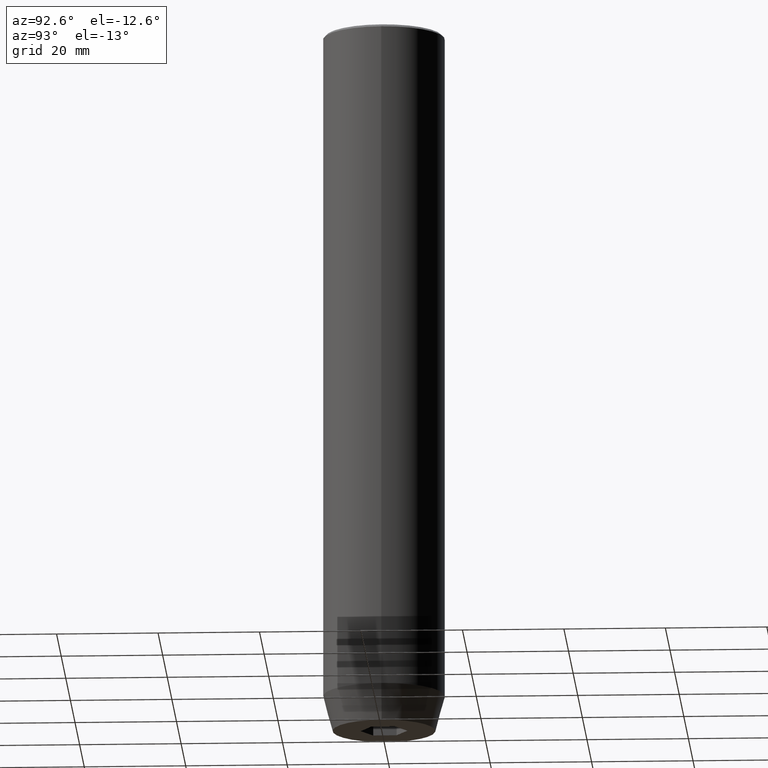
[diagram: clean part render]
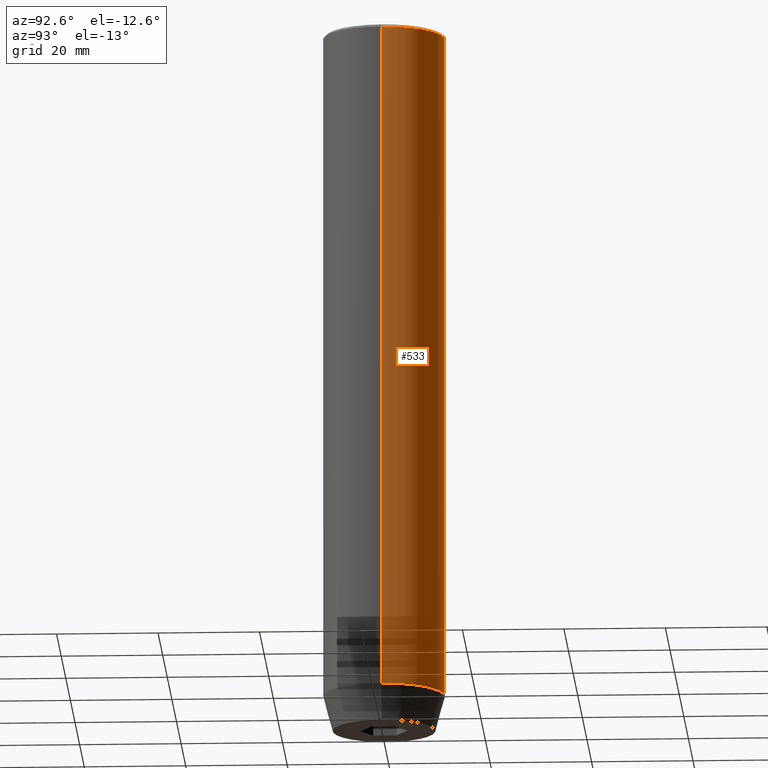
[diagram: same view with one face highlighted and labeled with its STEP entity id]
A machine part, auxiliary view. The second image highlights one B-rep face of the part: STEP entity #533.
In plain terms, the highlighted cylindrical surface (partial cylindrical patch) has radius 12 mm, axis along (-0, -0, 1).
Its self-contained STEP definition (entity closure, byte-faithful):
#8 = VECTOR ( 'NONE', #570, 1000.000000000000000 ) ;
#18 = CARTESIAN_POINT ( 'NONE',  ( 12.00000000000000000, 0.000000000000000000, -0.5000000000000056621 ) ) ;
#32 = ORIENTED_EDGE ( 'NONE', *, *, #495, .T. ) ;
#55 = VECTOR ( 'NONE', #195, 1000.000000000000000 ) ;
#61 = EDGE_CURVE ( 'NONE', #494, #375, #242, .T. ) ;
#70 = VERTEX_POINT ( 'NONE', #18 ) ;
#80 = VERTEX_POINT ( 'NONE', #200 ) ;
#85 = EDGE_CURVE ( 'NONE', #80, #70, #548, .T. ) ;
#98 = CYLINDRICAL_SURFACE ( 'NONE', #393, 12.00000000000000000 ) ;
#111 = DIRECTION ( 'NONE',  ( 0.000000000000000000, 0.000000000000000000, -1.000000000000000000 ) ) ;
#125 = ORIENTED_EDGE ( 'NONE', *, *, #61, .T. ) ;
#149 = CARTESIAN_POINT ( 'NONE',  ( -12.00000000000000000, 1.469576158976823947E-15, 0.000000000000000000 ) ) ;
#156 = ORIENTED_EDGE ( 'NONE', *, *, #304, .F. ) ;
#163 = CARTESIAN_POINT ( 'NONE',  ( 0.000000000000000000, 0.000000000000000000, -0.5000000000000056621 ) ) ;
#168 = DIRECTION ( 'NONE',  ( 1.000000000000000000, 0.000000000000000000, 0.000000000000000000 ) ) ;
#178 = ORIENTED_EDGE ( 'NONE', *, *, #85, .T. ) ;
#195 = DIRECTION ( 'NONE',  ( -0.000000000000000000, -0.000000000000000000, 1.000000000000000000 ) ) ;
#200 = CARTESIAN_POINT ( 'NONE',  ( -12.00000000000000000, 1.469576158976823947E-15, -0.5000000000000056621 ) ) ;
#208 = CARTESIAN_POINT ( 'NONE',  ( 0.000000000000000000, 0.000000000000000000, 0.000000000000000000 ) ) ;
#237 = DIRECTION ( 'NONE',  ( -0.000000000000000000, -0.000000000000000000, 1.000000000000000000 ) ) ;
#240 = FACE_OUTER_BOUND ( 'NONE', #534, .T. ) ;
#242 = CIRCLE ( 'NONE', #276, 12.00000000000000000 ) ;
#276 = AXIS2_PLACEMENT_3D ( 'NONE', #479, #237, #379 ) ;
#296 = AXIS2_PLACEMENT_3D ( 'NONE', #163, #111, #168 ) ;
#304 = EDGE_CURVE ( 'NONE', #494, #70, #416, .T. ) ;
#335 = CARTESIAN_POINT ( 'NONE',  ( -12.00000000000000000, 1.469576158976823947E-15, -133.0000000000000000 ) ) ;
#336 = CARTESIAN_POINT ( 'NONE',  ( 12.00000000000000000, 0.000000000000000000, -133.0000000000000000 ) ) ;
#375 = VERTEX_POINT ( 'NONE', #335 ) ;
#379 = DIRECTION ( 'NONE',  ( 1.000000000000000000, 0.000000000000000000, 0.000000000000000000 ) ) ;
#393 = AXIS2_PLACEMENT_3D ( 'NONE', #208, #478, #423 ) ;
#416 = LINE ( 'NONE', #421, #55 ) ;
#421 = CARTESIAN_POINT ( 'NONE',  ( 12.00000000000000000, 0.000000000000000000, 0.000000000000000000 ) ) ;
#423 = DIRECTION ( 'NONE',  ( 1.000000000000000000, 0.000000000000000000, 0.000000000000000000 ) ) ;
#478 = DIRECTION ( 'NONE',  ( -0.000000000000000000, -0.000000000000000000, 1.000000000000000000 ) ) ;
#479 = CARTESIAN_POINT ( 'NONE',  ( 0.000000000000000000, 0.000000000000000000, -133.0000000000000000 ) ) ;
#494 = VERTEX_POINT ( 'NONE', #336 ) ;
#495 = EDGE_CURVE ( 'NONE', #375, #80, #516, .T. ) ;
#516 = LINE ( 'NONE', #149, #8 ) ;
#533 = ADVANCED_FACE ( 'NONE', ( #240 ), #98, .T. ) ;
#534 = EDGE_LOOP ( 'NONE', ( #125, #32, #178, #156 ) ) ;
#548 = CIRCLE ( 'NONE', #296, 12.00000000000000000 ) ;
#570 = DIRECTION ( 'NONE',  ( -0.000000000000000000, -0.000000000000000000, 1.000000000000000000 ) ) ;